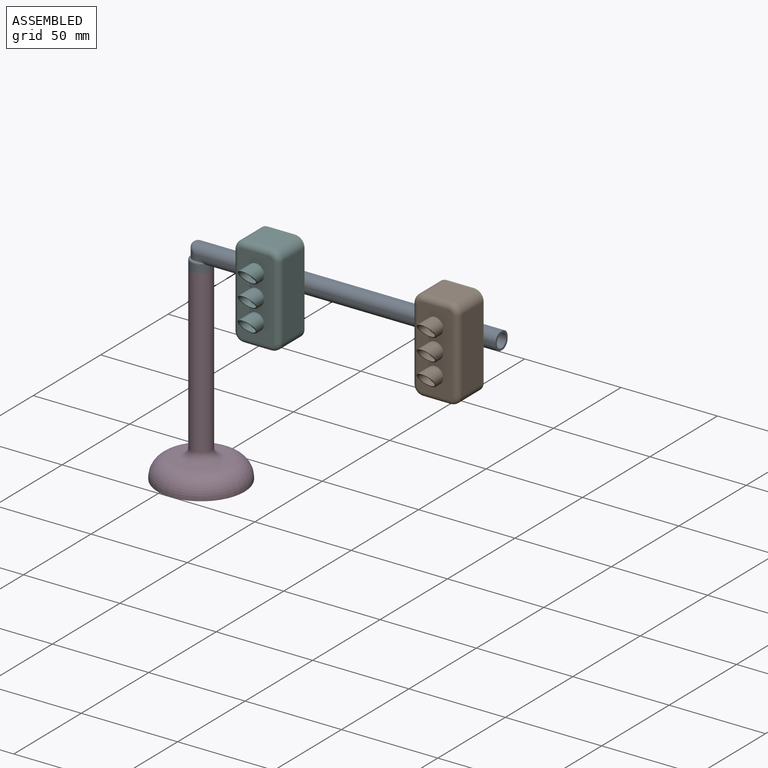
[diagram: assembled view]
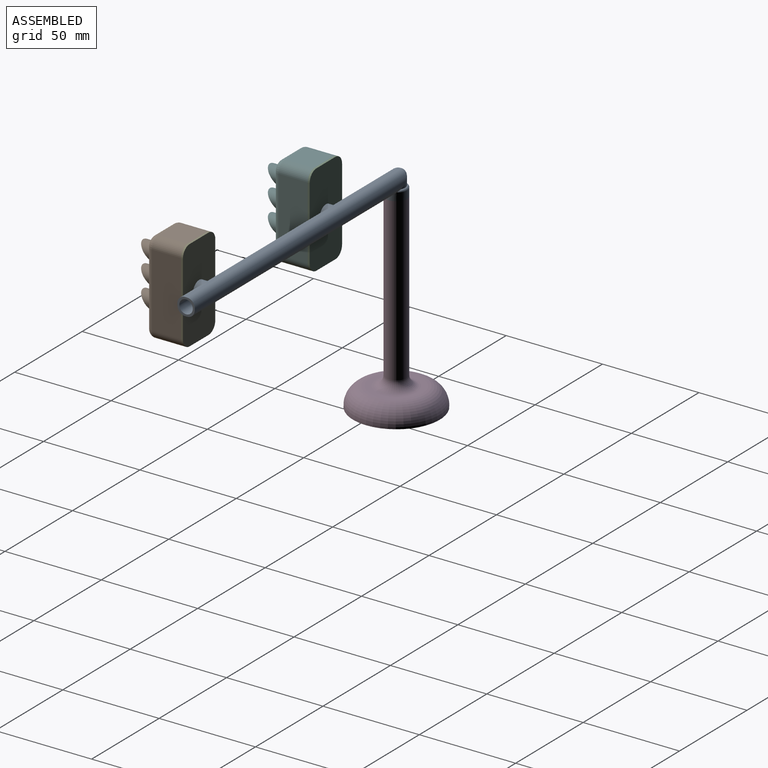
[diagram: assembled view, second angle]
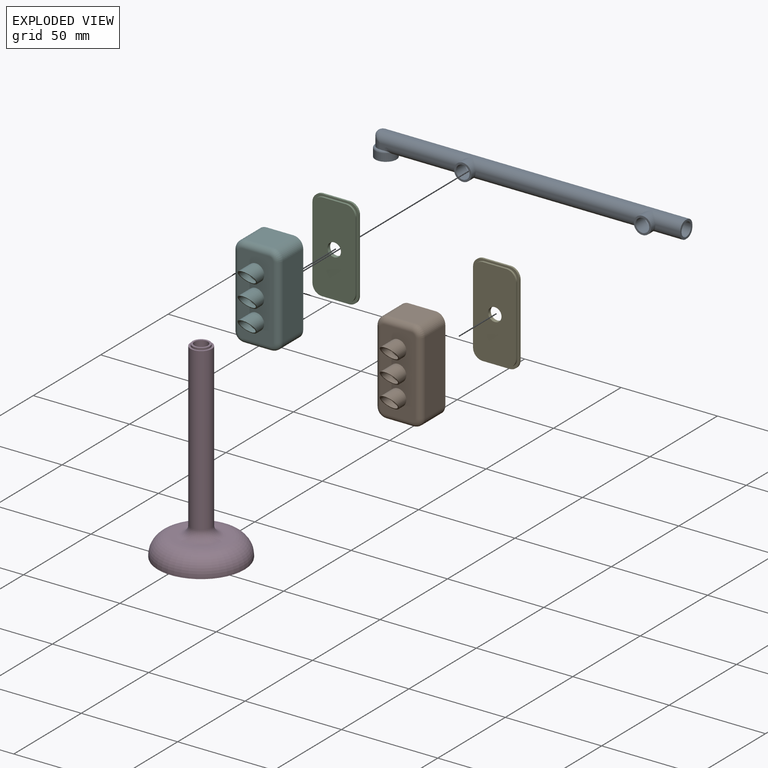
[diagram: exploded view]
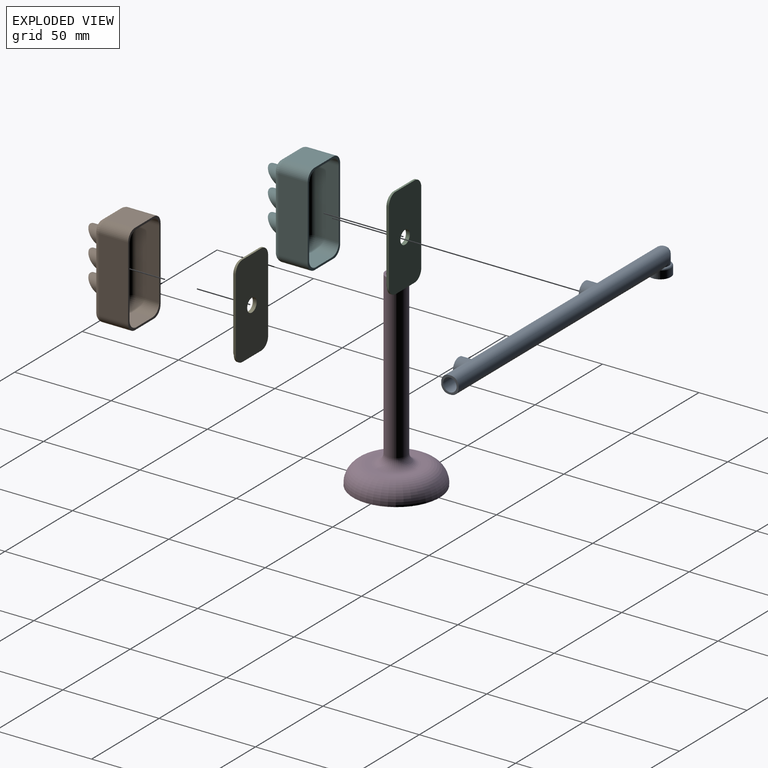
[diagram: exploded view, second angle]
ASSEMBLY  parts=6 mates=5
PART A: 61 faces, bbox 161.9x13.5x12.1 mm
  f0: cylinder r=3.5mm len=7mm, axis (0,0,-1), area 104.4mm2, adj f2,f31,f36,f37,f38,f39,f60
  f1: torus R=4.5mm, axis (0,0,-1), area 36.8mm2, adj f3,f4,f13,f18,f27,f28,f55
  f2: cylinder r=3.5mm len=158mm, axis (1,0,0), area 3247.8mm2, adj f0,f5,f6,f9,f10,f31,f35,f40
  f3: plane 40.81x3.01mm, normal (0,-1,0), area 45mm2, adj f1,f4,f7,f13,f14,f26,f27
  f4: plane 3.28x0.04mm, normal (-1,0,0), area 0mm2, adj f1,f3,f18,f26,f34
  f5: cylinder r=3.5mm len=8mm, axis (0,-1,0), area 154.7mm2, adj f2,f10,f44,f47,f53
  f6: cylinder r=3.5mm len=8mm, axis (0,-1,0), area 154.7mm2, adj f2,f9,f41,f50,f54
  f7: cylinder r=4.5mm len=9mm, axis (0,1,0), area 124.9mm2, adj f3,f11,f13,f14,f15,f54
  f8: cylinder r=4.5mm len=9mm, axis (0,1,0), area 124.9mm2, adj f11,f12,f13,f15,f16,f53
  f9: plane 6.93x4mm, normal (0,1,0), area 8.5mm2, adj f2,f6,f43
  f10: plane 6.93x4mm, normal (0,1,0), area 8.5mm2, adj f2,f5,f46
  f11: cylinder r=4mm len=93.26mm, axis (1,0,0), area 557.9mm2, adj f7,f8,f15,f23
  f12: cylinder r=4mm len=17.46mm, axis (1,0,0), area 95.7mm2, adj f8,f16,f23,f40
  f13: cylinder r=4mm len=151.39mm, axis (-1,0,0), area 880.1mm2, adj f1,f3,f7,f8,f15,f16,f22,f27
  f14: cylinder r=4mm len=40.67mm, axis (1,0,0), area 241.5mm2, adj f3,f7,f23,f26
  f15: plane 84.32x1mm, normal (0,-1,0), area 84.3mm2, adj f7,f8,f11,f13
  f16: plane 12.99x1mm, normal (0,-1,0), area 13mm2, adj f8,f12,f13,f40
  f17: plane 155.86x1mm, normal (0,1,0), area 155.9mm2, adj f25,f28,f29,f30,f40
  f18: cylinder r=4.5mm len=9mm, axis (0,0,-1), area 59.9mm2, adj f1,f4,f24,f28,f32,f33,f34
  f19: plane 7x1.01mm, normal (0,0,1), area 7mm2, adj f23,f26,f30,f33
  f20: plane 11x11mm, normal (0,0,-1), area 31.4mm2, adj f55,f59
  f21: plane 1x0.13mm, normal (0,1,0), area 0.1mm2, adj f24,f25,f28,f30
  f22: plane 150.39x1mm, normal (0,0,-1), area 150.4mm2, adj f13,f28,f40,f55
  f23: plane 151.39x1.01mm, normal (0,0,1), area 151.4mm2, adj f11,f12,f14,f19,f29,f40
  f24: plane 1.41x0.04mm, normal (-1,0,0), area 0mm2, adj f18,f21,f28,f30,f32
  f25: cylinder r=4.5mm len=1mm, axis (0,0,-1), area 0mm2, adj f17,f21,f28,f30
  f26: cylinder r=4mm len=6.92mm, axis (-1,0,0), area 37.4mm2, adj f3,f4,f14,f19,f34
  f27: bspline ~4.09x4.06mm, area 4.9mm2, adj f1,f3,f13
  f28: cylinder r=4mm len=156mm, axis (-1,0,0), area 957.3mm2, adj f1,f17,f18,f21,f22,f24,f25,f40
  f29: cylinder r=4mm len=151.39mm, axis (1,0,0), area 951.2mm2, adj f17,f23,f30,f40
  f30: cylinder r=4mm len=6.92mm, axis (-1,0,0), area 37.4mm2, adj f17,f19,f21,f24,f25,f29,f32
  f31: plane 7x6mm, normal (0,0,-1), area 12.4mm2, adj f0,f2,f35
  f32: bspline ~4.73x4.48mm, area 12.5mm2, adj f18,f24,f30,f33
  f33: torus R=2.5mm, axis (0,0,1), area 4.8mm2, adj f18,f19,f32,f34
  f34: bspline ~4.73x4.48mm, area 12.5mm2, adj f4,f18,f26,f33
  f35: plane 4.9x1mm, normal (1,0,0), area 3.4mm2, adj f2,f31
  f36: plane 4.27x0.73mm, normal (1,0,0), area 2.1mm2, adj f0,f37
  f37: cylinder r=3.5mm len=4.27mm, axis (1,0,0), area 4.9mm2, adj f0,f36
  f38: cylinder r=3.5mm len=4.27mm, axis (1,0,0), area 4.9mm2, adj f0,f39
  f39: plane 4.27x0.73mm, normal (1,0,0), area 2.1mm2, adj f0,f38
  f40: plane 9x9mm, normal (1,0,0), area 28.8mm2, adj f2,f12,f13,f16,f17,f22,f23,f28
  f41: plane 6.93x4mm, normal (0,1,0), area 8.5mm2, adj f2,f6,f42
  f42: cylinder r=4.5mm len=6.93mm, axis (0,1,0), area 0mm2, adj f2,f41
  f43: cylinder r=4.5mm len=6.93mm, axis (0,1,0), area 0mm2, adj f2,f9
  f44: plane 6.93x4mm, normal (0,1,0), area 8.5mm2, adj f2,f5,f45
  f45: cylinder r=4.5mm len=6.93mm, axis (0,1,0), area 0mm2, adj f2,f44
  f46: cylinder r=4.5mm len=6.93mm, axis (0,1,0), area 0mm2, adj f2,f10
  f47: plane 1x0.04mm, normal (0,-1,0), area 0mm2, adj f2,f5
  f48: plane 1x0.04mm, normal (0,-1,0), area 0mm2, adj f2,f49
  f49: cylinder r=3.5mm len=1mm, axis (0,-1,0), area 0mm2, adj f2,f48
  f50: plane 1x0.04mm, normal (0,-1,0), area 0mm2, adj f2,f6
  f51: plane 1x0.04mm, normal (0,-1,0), area 0mm2, adj f2,f52
  f52: cylinder r=3.5mm len=1mm, axis (0,-1,0), area 0mm2, adj f2,f51
  f53: plane 9x9mm, normal (0,-1,0), area 25.1mm2, adj f5,f8
  f54: plane 9x9mm, normal (0,-1,0), area 25.1mm2, adj f6,f7
  f55: cylinder r=5.5mm len=11mm, axis (0,0,-1), area 134.4mm2, adj f1,f13,f20,f22,f28
  f56: cylinder r=4.5mm len=4.9mm, axis (0,0,-1), area 2.6mm2, adj f2,f58
  f57: cylinder r=5.5mm len=4.9mm, axis (0,0,-1), area 2.5mm2, adj f2,f58
  f58: plane 4.9x1.73mm, normal (0,0,1), area 5.1mm2, adj f2,f56,f57
  f59: cylinder r=4.5mm len=9mm, axis (0,0,-1), area 84.8mm2, adj f20,f60
  f60: plane 9x9mm, normal (0,0,-1), area 25.1mm2, adj f0,f59
PART B: 53 faces, bbox 24x48x28 mm
  f0: cylinder r=3.75mm len=9.55mm, axis (0,0,-1), area 149.3mm2, adj f8,f44
  f1: cylinder r=4.34mm len=10mm, axis (0,0,-1), area 172.7mm2, adj f25,f44
  f2: cylinder r=3.75mm len=9.57mm, axis (0,0,-1), area 147.1mm2, adj f7,f42
  f3: cylinder r=3.75mm len=9.51mm, axis (0,0,-1), area 145.8mm2, adj f6,f41
  f4: cylinder r=4.38mm len=10mm, axis (0,0,-1), area 170.2mm2, adj f5,f25,f41
  f5: plane 0.69x0.01mm, normal (0,0,1), area 0mm2, adj f4,f41
  f6: plane 7.5x7.5mm, normal (0,0,1), area 20.4mm2, adj f3,f36
  f7: plane 7.5x7.5mm, normal (0,0,1), area 20.4mm2, adj f2,f37
  f8: plane 7.5x7.5mm, normal (0,0,1), area 20.4mm2, adj f0,f38
  f9: plane 12x12mm, normal (0,1,0), area 144mm2, adj f13,f14,f26,f48
  f10: plane 36x12mm, normal (1,0,0), area 432mm2, adj f14,f15,f26,f52
  f11: plane 12x12mm, normal (0,-1,0), area 144mm2, adj f15,f16,f26,f49
  f12: plane 36x12mm, normal (-1,0,0), area 432mm2, adj f13,f16,f26,f45
  f13: cylinder r=5mm len=12mm, axis (0,0,-1), area 94.2mm2, adj f9,f12,f26,f46
  f14: cylinder r=5mm len=12mm, axis (0,0,-1), area 94.2mm2, adj f9,f10,f26,f50
  f15: cylinder r=5mm len=12mm, axis (0,0,-1), area 94.2mm2, adj f10,f11,f26,f51
  f16: cylinder r=5mm len=12mm, axis (0,0,-1), area 94.2mm2, adj f11,f12,f26,f47
  f17: plane 38x15mm, normal (1,0,0), area 570mm2, adj f18,f24,f26,f32
  f18: cylinder r=5mm len=15mm, axis (0,0,-1), area 117.8mm2, adj f17,f19,f26,f30
  f19: plane 15x14mm, normal (0,1,0), area 210mm2, adj f18,f20,f26,f28
  f20: cylinder r=5mm len=15mm, axis (0,0,-1), area 117.8mm2, adj f19,f21,f26,f29
  f21: plane 38x15mm, normal (-1,0,0), area 570mm2, adj f20,f22,f26,f31
  f22: cylinder r=5mm len=15mm, axis (0,0,-1), area 117.8mm2, adj f21,f23,f26,f33
  f23: plane 15x14mm, normal (0,-1,0), area 210mm2, adj f22,f24,f26,f35
  f24: cylinder r=5mm len=15mm, axis (0,0,-1), area 117.8mm2, adj f17,f23,f26,f34
  f25: plane 42x18mm, normal (0,0,1), area 574.3mm2, adj f1,f4,f28,f29,f30,f31,f32,f33
  f26: plane 48x24mm, normal (0,0,-1), area 140mm2, adj f9,f10,f11,f12,f13,f14,f15,f16
  f27: plane 40x16mm, normal (0,0,-1), area 565.3mm2, adj f36,f37,f38,f45,f46,f47,f48,f49
  f28: cylinder r=3mm len=14mm, axis (1,0,0), area 66mm2, adj f19,f25,f29,f30
  f29: torus R=2mm, axis (0,0,1), area 28.9mm2, adj f20,f25,f28,f31
  f30: torus R=2mm, axis (0,0,1), area 28.9mm2, adj f18,f25,f28,f32
  f31: cylinder r=3mm len=38mm, axis (0,1,0), area 179.1mm2, adj f21,f25,f29,f33
  f32: cylinder r=3mm len=38mm, axis (0,-1,0), area 179.1mm2, adj f17,f25,f30,f34
  f33: torus R=2mm, axis (0,0,1), area 28.9mm2, adj f22,f25,f31,f35
  f34: torus R=2mm, axis (0,0,1), area 28.9mm2, adj f24,f25,f32,f35
  f35: cylinder r=3mm len=14mm, axis (-1,0,0), area 66mm2, adj f23,f25,f33,f34
  f36: cylinder r=2.75mm len=5.5mm, axis (0,0,1), area 51.8mm2, adj f6,f27
  f37: cylinder r=2.75mm len=5.5mm, axis (0,0,1), area 51.8mm2, adj f7,f27
  f38: cylinder r=2.75mm len=5.5mm, axis (0,0,1), area 51.8mm2, adj f8,f27
  f39: cylinder r=4.33mm len=10mm, axis (0,0,-1), area 169.8mm2, adj f25,f40,f42,f43
  f40: plane 1.56x0.07mm, normal (0,0,1), area 0.1mm2, adj f39,f43
  f41: plane 8.76x8.74mm, normal (0,0.66,0.75), area 21.3mm2, adj f3,f4,f5
  f42: plane 8.66x8.59mm, normal (0,0.66,0.75), area 19.5mm2, adj f2,f39,f43
  f43: plane 1.56x0.03mm, normal (0,1,0), area 0.1mm2, adj f39,f40,f42
  f44: plane 8.68x8.68mm, normal (0,0.65,0.76), area 19.6mm2, adj f0,f1
  f45: cylinder r=3mm len=36mm, axis (0,1,0), area 169.6mm2, adj f12,f27,f46,f47
  f46: torus R=2mm, axis (0,0,1), area 28.9mm2, adj f13,f27,f45,f48
  f47: torus R=2mm, axis (0,0,1), area 28.9mm2, adj f16,f27,f45,f49
  f48: cylinder r=3mm len=12mm, axis (1,0,0), area 56.5mm2, adj f9,f27,f46,f50
  f49: cylinder r=3mm len=12mm, axis (-1,0,0), area 56.5mm2, adj f11,f27,f47,f51
  f50: torus R=2mm, axis (0,0,1), area 28.9mm2, adj f14,f27,f48,f52
  f51: torus R=2mm, axis (0,0,1), area 28.9mm2, adj f15,f27,f49,f52
  f52: cylinder r=3mm len=36mm, axis (0,-1,0), area 169.6mm2, adj f10,f27,f50,f51
PART C: 20 faces, bbox 24x48x2 mm
  f0: plane 36x1mm, normal (1,0,0), area 36mm2, adj f1,f7,f8,f18
  f1: cylinder r=5mm len=5mm, axis (0,0,-1), area 7.9mm2, adj f0,f2,f8,f18
  f2: plane 12x1mm, normal (0,1,0), area 12mm2, adj f1,f3,f8,f18
  f3: cylinder r=5mm len=5mm, axis (0,0,-1), area 7.9mm2, adj f2,f4,f8,f18
  f4: plane 36x1mm, normal (-1,0,0), area 36mm2, adj f3,f5,f8,f18
  f5: cylinder r=5mm len=5mm, axis (0,0,-1), area 7.9mm2, adj f4,f6,f8,f18
  f6: plane 12x1mm, normal (0,-1,0), area 12mm2, adj f5,f7,f8,f18
  f7: cylinder r=5mm len=5mm, axis (0,0,-1), area 7.9mm2, adj f0,f6,f8,f18
  f8: plane 46x22mm, normal (0,0,1), area 952.1mm2, adj f0,f1,f2,f3,f4,f5,f6,f7
  f9: plane 14x1mm, normal (0,-1,0), area 14mm2, adj f10,f16,f17,f18
  f10: cylinder r=5mm len=5mm, axis (0,0,1), area 7.9mm2, adj f9,f11,f17,f18
  f11: plane 38x1mm, normal (1,0,0), area 38mm2, adj f10,f12,f17,f18
  f12: cylinder r=5mm len=5mm, axis (0,0,1), area 7.9mm2, adj f11,f13,f17,f18
  f13: plane 14x1mm, normal (0,1,0), area 14mm2, adj f12,f14,f17,f18
  f14: cylinder r=5mm len=5mm, axis (0,0,1), area 7.9mm2, adj f13,f15,f17,f18
  f15: plane 38x1mm, normal (-1,0,0), area 38mm2, adj f14,f16,f17,f18
  f16: cylinder r=5mm len=5mm, axis (0,0,1), area 7.9mm2, adj f9,f15,f17,f18
  f17: plane 48x24mm, normal (0,0,-1), area 1092.1mm2, adj f9,f10,f11,f12,f13,f14,f15,f16
  f18: plane 48x24mm, normal (0,0,1), area 140mm2, adj f0,f1,f2,f3,f4,f5,f6,f7
  f19: cylinder r=3.5mm len=7mm, axis (0,0,-1), area 44mm2, adj f8,f17
PART D: 10 faces, bbox 48.7x48.7x100 mm
  f0: cylinder r=5.5mm len=84mm, axis (0,0,-1), area 2902.8mm2, adj f6,f9
  f1: cylinder r=22.5mm len=45mm, axis (0,0,-1), area 141.4mm2, adj f3,f4
  f2: plane 27x27mm, normal (0,0,1), area 226.2mm2, adj f4,f9
  f3: plane 45x45mm, normal (0,0,-1), area 1551.9mm2, adj f1,f8
  f4: torus R=13.5mm, axis (0,0,1), area 1708.1mm2, adj f1,f2
  f5: cylinder r=4.5mm len=9mm, axis (0,0,1), area 28.3mm2, adj f6,f7
  f6: plane 11x11mm, normal (0,0,1), area 31.4mm2, adj f0,f5
  f7: plane 9x9mm, normal (0,0,1), area 25.1mm2, adj f5,f8
  f8: cylinder r=3.5mm len=100mm, axis (0,0,1), area 2199.1mm2, adj f3,f7
  f9: torus R=10.5mm, axis (0,0,1), area 361.1mm2, adj f0,f2
PART E: same geometry as C
PART F: same geometry as B
PLACE A t=(-63.41,-47.9,121.36)mm
PLACE B rot(axis=(0,-0.71,0.71),180deg) t=(38.53,-54.36,143.68)mm
PLACE C rot(axis=(0,-0.71,0.71),180deg) t=(-44.64,-53.88,145.24)mm
PLACE D t=(-94.28,-47.9,22.36)mm
PLACE E rot(axis=(0,-0.71,0.71),180deg) t=(48.62,-54.36,145.24)mm
PLACE F rot(axis=(0,-0.71,0.71),180deg) t=(-54.73,-53.88,143.68)mm
MATE fastened E.f19 <-> A.f5  axis (0,1,0) through (44.12,-54.36,128.86)mm
MATE fastened C.f19 <-> F.f2  axis (0,-1,0) through (-49.14,-53.88,128.86)mm
MATE fastened D.f0 <-> A.f0  axis (0,0,1) through (-94.28,-47.9,121.36)mm
MATE fastened E.f19 <-> B.f2  axis (0,-1,0) through (44.12,-54.36,128.86)mm
MATE fastened C.f19 <-> A.f6  axis (0,1,0) through (-49.14,-53.88,128.86)mm
